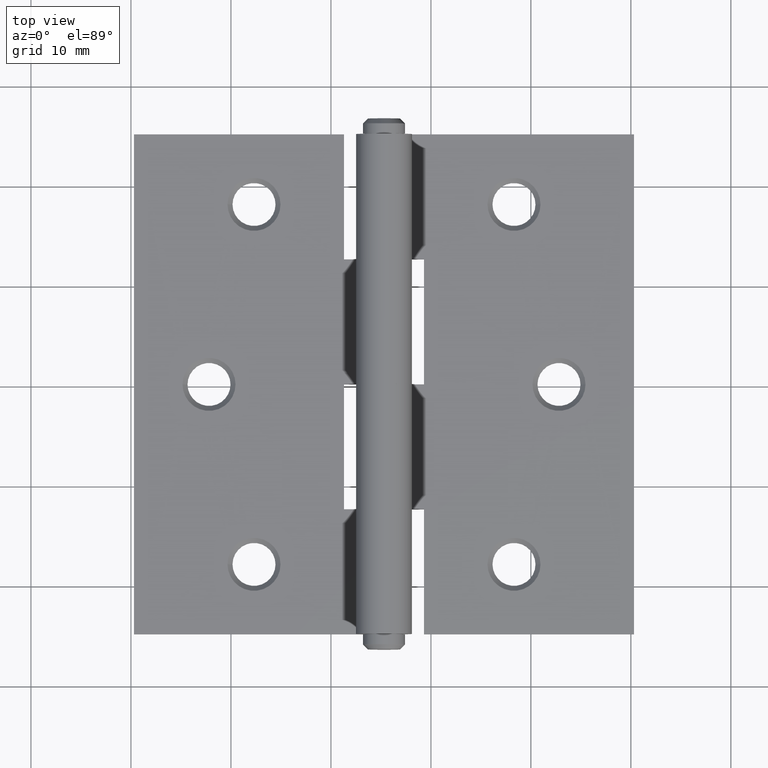
[diagram: clean part render]
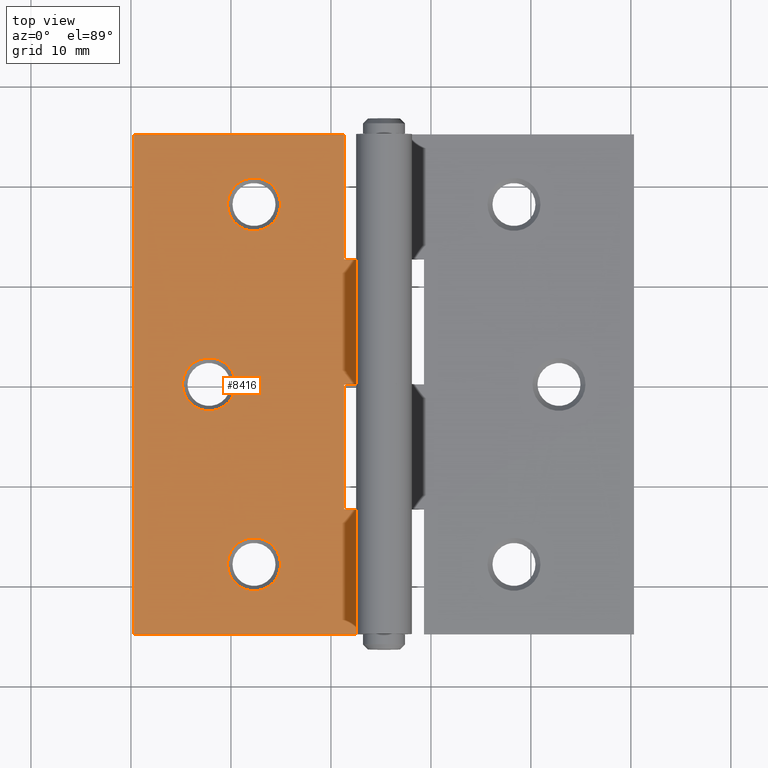
[diagram: same view with one face highlighted and labeled with its STEP entity id]
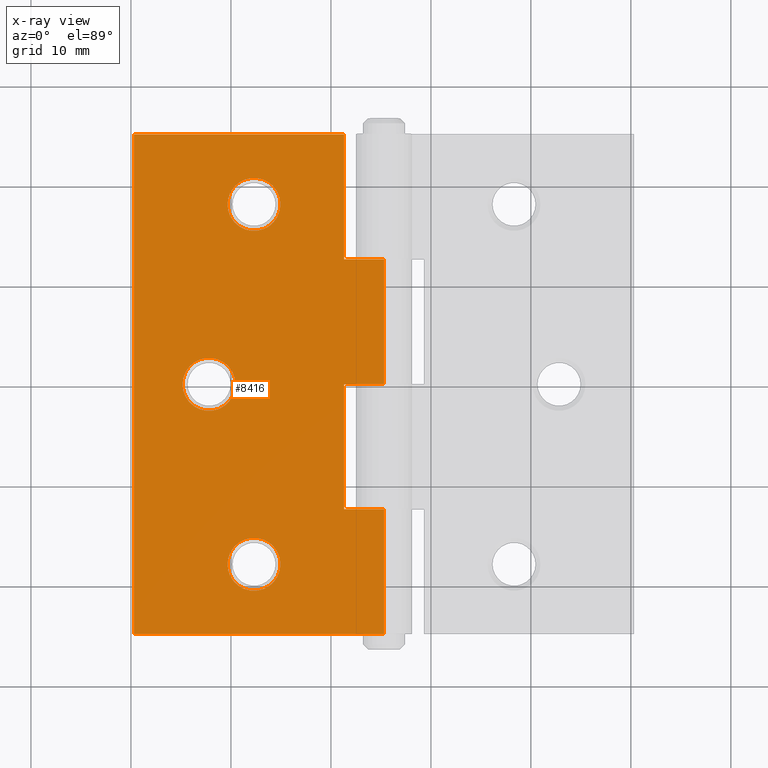
[diagram: x-ray of the same camera — body ghosted, the highlighted face saturated]
A machine part, top view. The second image highlights one B-rep face of the part: STEP entity #8416.
The next image is the same camera in x-ray: the body ghosted, the highlighted face saturated — about 0% of this face is hidden behind the body in this view.
In plain terms, the highlighted planar face has unit normal (-0, 0, -1).
Its self-contained STEP definition (entity closure, byte-faithful):
#24 = LINE ( 'NONE', #10533, #8846 ) ;
#99 = ORIENTED_EDGE ( 'NONE', *, *, #3288, .T. ) ;
#148 = ORIENTED_EDGE ( 'NONE', *, *, #1356, .T. ) ;
#187 = LINE ( 'NONE', #4248, #6459 ) ;
#239 = CARTESIAN_POINT ( 'NONE',  ( -2.800000000000000266, 3.469446951953614189E-15, 0.9000000000000005773 ) ) ;
#278 = CARTESIAN_POINT ( 'NONE',  ( -2.800000000000000266, 25.00000000000000000, 0.9000000000000001332 ) ) ;
#302 = EDGE_CURVE ( 'NONE', #9400, #7094, #631, .T. ) ;
#498 = CARTESIAN_POINT ( 'NONE',  ( -6.799999999999995381, 12.50000000000000355, 0.9000000000000005773 ) ) ;
#583 = ORIENTED_EDGE ( 'NONE', *, *, #10724, .T. ) ;
#631 = LINE ( 'NONE', #1179, #9626 ) ;
#679 = LINE ( 'NONE', #10246, #7896 ) ;
#681 = VERTEX_POINT ( 'NONE', #9625 ) ;
#699 = PLANE ( 'NONE',  #10141 ) ;
#974 = DIRECTION ( 'NONE',  ( 0.000000000000000000, 1.000000000000000000, 0.000000000000000000 ) ) ;
#983 = VERTEX_POINT ( 'NONE', #6828 ) ;
#987 = VECTOR ( 'NONE', #4826, 1000.000000000000000 ) ;
#990 = DIRECTION ( 'NONE',  ( -1.000000000000000000, 0.000000000000000000, 1.227398685832630780E-16 ) ) ;
#1017 = CARTESIAN_POINT ( 'NONE',  ( -2.800000000000000266, -25.00000000000000000, 0.9000000000000001332 ) ) ;
#1116 = FACE_BOUND ( 'NONE', #4992, .T. ) ;
#1167 = VECTOR ( 'NONE', #3837, 1000.000000000000000 ) ;
#1179 = CARTESIAN_POINT ( 'NONE',  ( -2.800000000000000266, 25.00000000000000000, 0.9000000000000001332 ) ) ;
#1273 = DIRECTION ( 'NONE',  ( 0.000000000000000000, 1.000000000000000000, 0.000000000000000000 ) ) ;
#1356 = EDGE_CURVE ( 'NONE', #6664, #3487, #6498, .T. ) ;
#1650 = EDGE_CURVE ( 'NONE', #6728, #6728, #2549, .T. ) ;
#1771 = DIRECTION ( 'NONE',  ( 1.000000000000000000, -0.000000000000000000, -1.127570259384924858E-16 ) ) ;
#2034 = DIRECTION ( 'NONE',  ( -0.000000000000000000, -1.000000000000000000, -0.000000000000000000 ) ) ;
#2310 = VERTEX_POINT ( 'NONE', #7127 ) ;
#2420 = CARTESIAN_POINT ( 'NONE',  ( -18.45000000000003837, 17.99999999999999645, 0.9000000000000019096 ) ) ;
#2458 = LINE ( 'NONE', #10954, #987 ) ;
#2467 = FACE_BOUND ( 'NONE', #2543, .T. ) ;
#2493 = ORIENTED_EDGE ( 'NONE', *, *, #1650, .T. ) ;
#2501 = CARTESIAN_POINT ( 'NONE',  ( -15.80000000000000426, 17.99999999999999645, 0.9000000000000015765 ) ) ;
#2543 = EDGE_LOOP ( 'NONE', ( #8599 ) ) ;
#2549 = CIRCLE ( 'NONE', #6509, 2.650000000000034106 ) ;
#2578 = DIRECTION ( 'NONE',  ( -1.000000000000000000, 0.000000000000000000, 1.227398685832630780E-16 ) ) ;
#2705 = DIRECTION ( 'NONE',  ( -1.127570259384924858E-16, 0.000000000000000000, -1.000000000000000000 ) ) ;
#2774 = VECTOR ( 'NONE', #10642, 1000.000000000000000 ) ;
#2954 = CARTESIAN_POINT ( 'NONE',  ( -6.799999999999995381, 25.00000000000000000, 0.9000000000000004663 ) ) ;
#3085 = VERTEX_POINT ( 'NONE', #2420 ) ;
#3284 = VECTOR ( 'NONE', #1273, 1000.000000000000000 ) ;
#3288 = EDGE_CURVE ( 'NONE', #983, #7094, #5755, .T. ) ;
#3313 = EDGE_LOOP ( 'NONE', ( #583, #99, #3392, #7066, #148, #3617, #5438, #3760, #3835, #6126 ) ) ;
#3392 = ORIENTED_EDGE ( 'NONE', *, *, #302, .F. ) ;
#3400 = DIRECTION ( 'NONE',  ( -1.127570259384924858E-16, 0.000000000000000000, -1.000000000000000000 ) ) ;
#3487 = VERTEX_POINT ( 'NONE', #5822 ) ;
#3617 = ORIENTED_EDGE ( 'NONE', *, *, #5184, .F. ) ;
#3623 = CARTESIAN_POINT ( 'NONE',  ( -27.79999999999999716, 25.00000000000000000, 0.9000000000000029088 ) ) ;
#3639 = EDGE_CURVE ( 'NONE', #5161, #6985, #679, .T. ) ;
#3744 = CARTESIAN_POINT ( 'NONE',  ( -2.799999999999989608, -12.49999999999999645, 0.9000000000000001332 ) ) ;
#3760 = ORIENTED_EDGE ( 'NONE', *, *, #3639, .T. ) ;
#3797 = EDGE_CURVE ( 'NONE', #9400, #6664, #24, .T. ) ;
#3835 = ORIENTED_EDGE ( 'NONE', *, *, #9251, .F. ) ;
#3837 = DIRECTION ( 'NONE',  ( 1.000000000000000000, -0.000000000000000000, -1.127570259384924858E-16 ) ) ;
#3885 = EDGE_LOOP ( 'NONE', ( #2493 ) ) ;
#3928 = FACE_BOUND ( 'NONE', #3885, .T. ) ;
#4248 = CARTESIAN_POINT ( 'NONE',  ( -6.799999999999995381, 25.00000000000000000, 0.9000000000000004663 ) ) ;
#4337 = CIRCLE ( 'NONE', #6350, 2.650000000000034106 ) ;
#4415 = EDGE_CURVE ( 'NONE', #2310, #5161, #8965, .T. ) ;
#4611 = CARTESIAN_POINT ( 'NONE',  ( -27.79999999999999716, -25.00000000000000000, 0.9000000000000029088 ) ) ;
#4634 = EDGE_CURVE ( 'NONE', #7888, #681, #6940, .T. ) ;
#4826 = DIRECTION ( 'NONE',  ( -0.000000000000000000, -1.000000000000000000, -0.000000000000000000 ) ) ;
#4992 = EDGE_LOOP ( 'NONE', ( #8502 ) ) ;
#5094 = CARTESIAN_POINT ( 'NONE',  ( -2.799999999999999822, 12.50000000000000355, 0.9000000000000005773 ) ) ;
#5161 = VERTEX_POINT ( 'NONE', #4611 ) ;
#5184 = EDGE_CURVE ( 'NONE', #2310, #3487, #10721, .T. ) ;
#5438 = ORIENTED_EDGE ( 'NONE', *, *, #4415, .T. ) ;
#5755 = LINE ( 'NONE', #7131, #7497 ) ;
#5822 = CARTESIAN_POINT ( 'NONE',  ( -6.799999999999995381, 25.00000000000000000, 0.9000000000000014655 ) ) ;
#5940 = FACE_OUTER_BOUND ( 'NONE', #3313, .T. ) ;
#6126 = ORIENTED_EDGE ( 'NONE', *, *, #4634, .T. ) ;
#6255 = DIRECTION ( 'NONE',  ( -1.000000000000000000, 0.000000000000000000, 1.127570259384924858E-16 ) ) ;
#6350 = AXIS2_PLACEMENT_3D ( 'NONE', #2501, #6773, #2578 ) ;
#6459 = VECTOR ( 'NONE', #974, 1000.000000000000000 ) ;
#6498 = LINE ( 'NONE', #2954, #3284 ) ;
#6509 = AXIS2_PLACEMENT_3D ( 'NONE', #10263, #3400, #9435 ) ;
#6631 = CARTESIAN_POINT ( 'NONE',  ( -2.800000000000000266, 25.00000000000000000, 0.9000000000000001332 ) ) ;
#6664 = VERTEX_POINT ( 'NONE', #498 ) ;
#6728 = VERTEX_POINT ( 'NONE', #10283 ) ;
#6773 = DIRECTION ( 'NONE',  ( -1.127570259384924858E-16, 0.000000000000000000, -1.000000000000000000 ) ) ;
#6828 = CARTESIAN_POINT ( 'NONE',  ( -6.799999999999995381, 3.469446951953614189E-15, 0.9000000000000005773 ) ) ;
#6940 = LINE ( 'NONE', #3744, #2774 ) ;
#6985 = VERTEX_POINT ( 'NONE', #1017 ) ;
#7066 = ORIENTED_EDGE ( 'NONE', *, *, #3797, .T. ) ;
#7094 = VERTEX_POINT ( 'NONE', #239 ) ;
#7127 = CARTESIAN_POINT ( 'NONE',  ( -27.79999999999999716, 25.00000000000000000, 0.9000000000000029088 ) ) ;
#7131 = CARTESIAN_POINT ( 'NONE',  ( -2.800000000000000266, 3.469446951953614189E-15, 0.9000000000000001332 ) ) ;
#7308 = EDGE_CURVE ( 'NONE', #3085, #3085, #4337, .T. ) ;
#7373 = CARTESIAN_POINT ( 'NONE',  ( -2.800000000000000266, -12.49999999999999645, 0.9000000000000005773 ) ) ;
#7427 = CIRCLE ( 'NONE', #8224, 2.650000000000034106 ) ;
#7497 = VECTOR ( 'NONE', #10544, 1000.000000000000000 ) ;
#7837 = CARTESIAN_POINT ( 'NONE',  ( -20.30000000000000071, -3.469446951953614189E-15, 0.9000000000000020206 ) ) ;
#7888 = VERTEX_POINT ( 'NONE', #7373 ) ;
#7896 = VECTOR ( 'NONE', #1771, 1000.000000000000000 ) ;
#8166 = EDGE_CURVE ( 'NONE', #9832, #9832, #7427, .T. ) ;
#8224 = AXIS2_PLACEMENT_3D ( 'NONE', #7837, #2705, #990 ) ;
#8375 = CARTESIAN_POINT ( 'NONE',  ( -22.95000000000003482, -3.469446951953614189E-15, 0.9000000000000023537 ) ) ;
#8416 = ADVANCED_FACE ( 'NONE', ( #1116, #3928, #2467, #5940 ), #699, .F. ) ;
#8502 = ORIENTED_EDGE ( 'NONE', *, *, #8166, .T. ) ;
#8599 = ORIENTED_EDGE ( 'NONE', *, *, #7308, .T. ) ;
#8846 = VECTOR ( 'NONE', #6255, 1000.000000000000000 ) ;
#8965 = LINE ( 'NONE', #3623, #10199 ) ;
#9202 = DIRECTION ( 'NONE',  ( -1.127570259384924858E-16, 0.000000000000000000, -1.000000000000000000 ) ) ;
#9251 = EDGE_CURVE ( 'NONE', #7888, #6985, #2458, .T. ) ;
#9400 = VERTEX_POINT ( 'NONE', #5094 ) ;
#9435 = DIRECTION ( 'NONE',  ( -1.000000000000000000, 0.000000000000000000, 1.227398685832630780E-16 ) ) ;
#9625 = CARTESIAN_POINT ( 'NONE',  ( -6.799999999999995381, -12.49999999999999822, 0.9000000000000005773 ) ) ;
#9626 = VECTOR ( 'NONE', #2034, 1000.000000000000000 ) ;
#9832 = VERTEX_POINT ( 'NONE', #8375 ) ;
#10122 = DIRECTION ( 'NONE',  ( -1.000000000000000000, 0.000000000000000000, 1.127570259384924858E-16 ) ) ;
#10141 = AXIS2_PLACEMENT_3D ( 'NONE', #6631, #9202, #10122 ) ;
#10199 = VECTOR ( 'NONE', #10555, 1000.000000000000000 ) ;
#10246 = CARTESIAN_POINT ( 'NONE',  ( -2.800000000000000266, -25.00000000000000000, 0.9000000000000001332 ) ) ;
#10263 = CARTESIAN_POINT ( 'NONE',  ( -15.80000000000000071, -18.00000000000000355, 0.9000000000000015765 ) ) ;
#10283 = CARTESIAN_POINT ( 'NONE',  ( -18.45000000000003482, -18.00000000000000355, 0.9000000000000019096 ) ) ;
#10533 = CARTESIAN_POINT ( 'NONE',  ( -2.800000000000000266, 12.50000000000000355, 0.9000000000000001332 ) ) ;
#10544 = DIRECTION ( 'NONE',  ( 1.000000000000000000, -0.000000000000000000, -1.127570259384924858E-16 ) ) ;
#10555 = DIRECTION ( 'NONE',  ( -0.000000000000000000, -1.000000000000000000, -0.000000000000000000 ) ) ;
#10642 = DIRECTION ( 'NONE',  ( -1.000000000000000000, -2.940209281316622002E-16, 1.127570259384924858E-16 ) ) ;
#10721 = LINE ( 'NONE', #278, #1167 ) ;
#10724 = EDGE_CURVE ( 'NONE', #681, #983, #187, .T. ) ;
#10954 = CARTESIAN_POINT ( 'NONE',  ( -2.800000000000000266, 25.00000000000000000, 0.9000000000000001332 ) ) ;